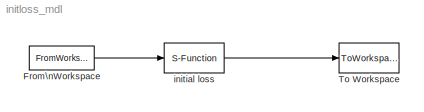
MODEL initloss_mdl
KIND model
CONFIG AbsTol = auto
CONFIG FixedStep = 1
CONFIG MaxStep = auto
CONFIG RelTol = 1e-3
CONFIG Solver = FixedStepDiscrete
CONFIG SolverMode = SingleTasking
CONFIG StartTime = 0
CONFIG StopTime = Q
BLOCK [FromWorkspace] From\nWorkspace
  HoldFinalValue = off
  Interpolate = on
  SampleTime = 1
  VariableName = [T,U2]
BLOCK [ToWorkspace] To Workspace
  Buffer = inf
  Decimation = 1
  SampleTime = -1
  SaveFormat = Matrix
  VariableName = initout
BLOCK [S-Function] initial loss
  FunctionName = initloss_new
  Parameters = init,k
  PortCounts = []
  Ports = [1, 1, 0, 0, 0]
  SFunctionModules = ''
LINE From\nWorkspace:1 -> initial loss:1
LINE initial loss:1 -> To Workspace:1
